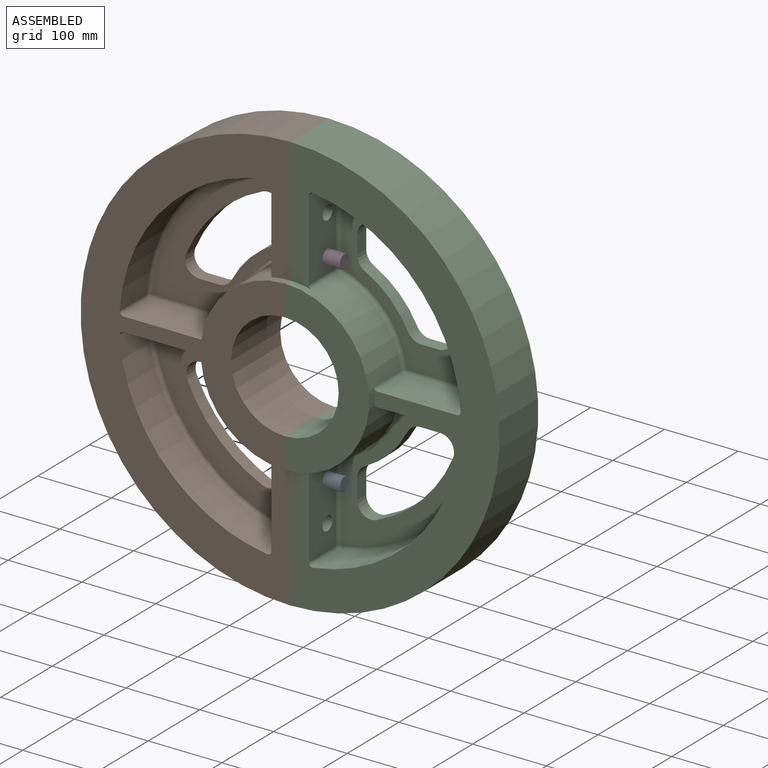
[diagram: assembled view]
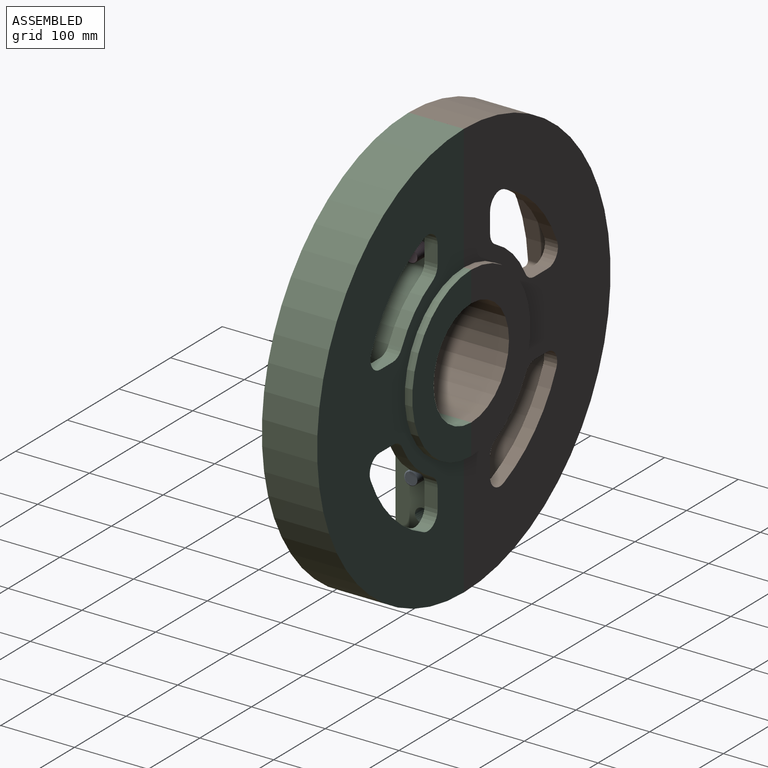
[diagram: assembled view, second angle]
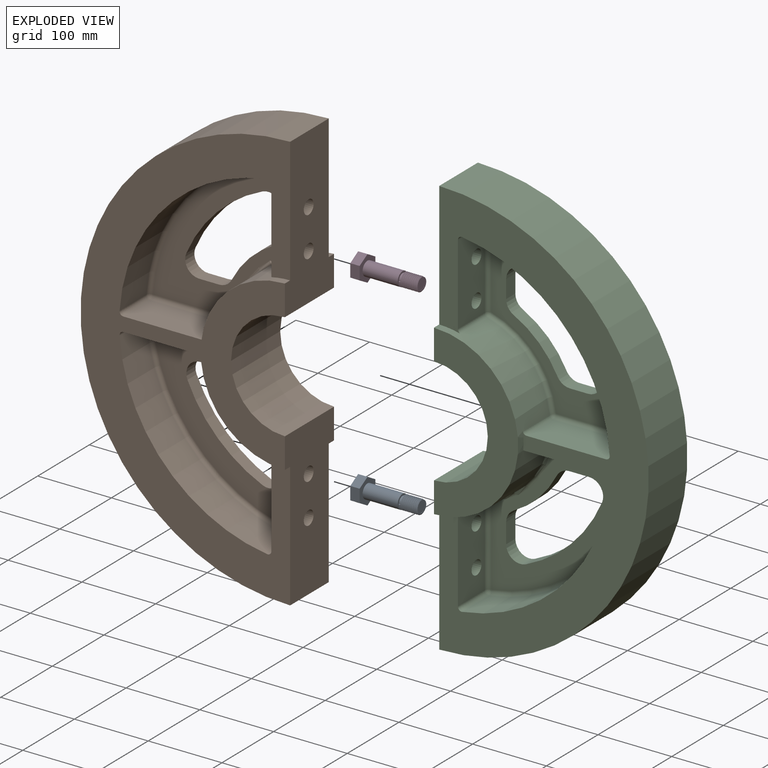
[diagram: exploded view]
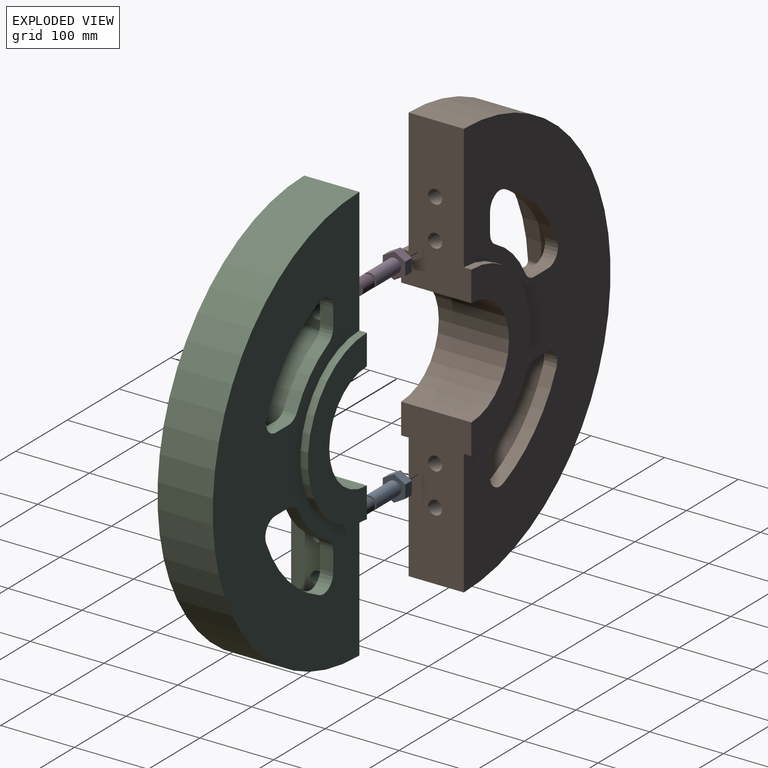
[diagram: exploded view, second angle]
ASSEMBLY  parts=4 mates=3
PART A: 19 faces, bbox 87.2x30.6x35.3 mm
  f0: bspline ~25.22x21.26mm, area 1042mm2, adj f1,f2,f14,f16
  f1: bspline ~24.92x21.63mm, area 245.4mm2, adj f0,f2,f14,f16
  f2: bspline ~26.49x21.26mm, area 1107.5mm2, adj f0,f1,f14,f15,f16
  f3: plane 17.6x12.7mm, normal (0,1,0), area 223.5mm2, adj f4,f8,f9,f10
  f4: plane 15.24x12.7mm, normal (0,0.5,0.87), area 223.5mm2, adj f3,f5,f9,f10
  f5: plane 15.24x12.7mm, normal (0,-0.5,0.87), area 223.5mm2, adj f4,f6,f9,f10
  f6: plane 17.6x12.7mm, normal (0,-1,0), area 223.5mm2, adj f5,f7,f9,f10
  f7: plane 15.24x12.7mm, normal (0,-0.5,-0.87), area 223.5mm2, adj f6,f8,f9,f10
  f8: plane 15.24x12.7mm, normal (0,0.5,-0.87), area 223.5mm2, adj f3,f7,f9,f10
  f9: plane 35.2x30.48mm, normal (1,0,0), area 519.5mm2, adj f3,f4,f5,f6,f7,f8,f11
  f10: plane 35.2x30.48mm, normal (-1,0,0), area 804.6mm2, adj f3,f4,f5,f6,f7,f8
  f11: cylinder r=9.53mm len=47.63mm, axis (-1,0,0), area 2850.2mm2, adj f9,f12
  f12: plane 19.05x19.05mm, normal (1,0,0), area 127.3mm2, adj f11,f13
  f13: cylinder r=7.09mm len=14.17mm, axis (-1,0,0), area 56.5mm2, adj f12,f14,f15
  f14: plane 2.69x2.24mm, normal (0,0,1), area 3.4mm2, adj f0,f1,f2,f13,f15
  f15: bspline ~16.92x14.65mm, area 12.5mm2, adj f2,f13,f14
  f16: plane 17.02x16.79mm, normal (1,0,0), area 65.8mm2, adj f0,f1,f2,f18
  f17: plane 14.17x14.17mm, normal (1,0,0), area 157.8mm2, adj f18
  f18: cylinder r=7.09mm len=14.17mm, axis (1,0,0), area 5.7mm2, adj f16,f17
PART B: 58 faces, bbox 284.2x95.3x568.3 mm
  f0: plane 211.14x95.25mm, normal (-1,0,0), area 16089.2mm2, adj f3,f4,f5,f40,f41,f42,f43,f44
  f1: plane 211.14x95.25mm, normal (-1,0,0), area 16089.2mm2, adj f3,f4,f5,f38,f39,f42,f43,f44
  f2: plane 210.03x195.74mm, normal (0,-1,0), area 14897.4mm2, adj f30,f31,f32,f33,f34,f35,f36,f37
  f3: plane 568.33x284.16mm, normal (0,1,0), area 87890.6mm2, adj f0,f1,f5,f22,f23,f24,f25,f26
  f4: plane 568.33x284.16mm, normal (0,-1,0), area 50722.7mm2, adj f0,f1,f5,f6,f7,f8,f9,f10
  f5: cylinder r=284.16mm len=568.33mm, axis (0,1,0), area 66891.7mm2, adj f0,f1,f3,f4
  f6: plane 112.32x52.07mm, normal (0,0,-1), area 5848.6mm2, adj f4,f14,f44,f47
  f7: plane 113.19x52.07mm, normal (1,0,0), area 5324mm2, adj f4,f13,f40,f41,f44,f51
  f8: cylinder r=231.78mm len=214.74mm, axis (0,-1,0), area 16551.5mm2, adj f4,f13,f14,f48
  f9: plane 107.74x52.07mm, normal (0,0,1), area 5610.1mm2, adj f4,f15,f17,f56
  f10: cylinder r=231.78mm len=214.74mm, axis (0,-1,0), area 16551.5mm2, adj f4,f15,f18,f21
  f11: plane 109.21x52.07mm, normal (1,0,0), area 5116.7mm2, adj f4,f19,f21,f38,f39,f52
  f12: plane 210.03x195.74mm, normal (0,-1,0), area 15294.8mm2, adj f17,f18,f19,f22,f23,f24,f25,f26
  f13: cylinder r=5.08mm len=52.07mm, axis (0,-1,0), area 451.2mm2, adj f4,f7,f8,f50
  f14: cylinder r=5.08mm len=52.07mm, axis (0,-1,0), area 432.6mm2, adj f4,f6,f8,f46
  f15: cylinder r=5.08mm len=52.07mm, axis (0,-1,0), area 432.6mm2, adj f4,f9,f10,f16
  f16: sphere r=5.08mm, area 42.2mm2, adj f15,f17,f18
  f17: cylinder r=5.08mm len=107.74mm, axis (1,0,0), area 859.7mm2, adj f9,f12,f16,f55
  f18: torus R=226.7mm, axis (0,-1,0), area 2516.3mm2, adj f10,f12,f16,f20
  f19: cylinder r=5.08mm len=109.21mm, axis (0,0,-1), area 871.5mm2, adj f11,f12,f20,f53
  f20: sphere r=5.08mm, area 44mm2, adj f18,f19,f21
  f21: cylinder r=5.08mm len=52.07mm, axis (0,-1,0), area 451.2mm2, adj f4,f10,f11,f20
  f22: plane 24.54x17.78mm, normal (1,0,0), area 436.4mm2, adj f3,f12,f23,f29
  f23: cylinder r=19.05mm len=17.78mm, axis (0,-1,0), area 372.6mm2, adj f3,f12,f22,f24
  f24: cylinder r=134.94mm len=59.05mm, axis (0,-1,0), area 1509.5mm2, adj f3,f12,f23,f25
  f25: cylinder r=19.05mm len=17.78mm, axis (0,-1,0), area 372.6mm2, adj f3,f12,f24,f26
  f26: plane 24.54x17.78mm, normal (0,0,1), area 436.4mm2, adj f3,f12,f25,f27
  f27: cylinder r=19.05mm len=26.6mm, axis (0,-1,0), area 670.1mm2, adj f3,f12,f26,f28
  f28: cylinder r=195.26mm len=101.87mm, axis (0,-1,0), area 2623.3mm2, adj f3,f12,f27,f29
  f29: cylinder r=19.05mm len=26.6mm, axis (0,-1,0), area 670.1mm2, adj f3,f12,f22,f28
  f30: cylinder r=134.02mm len=58.1mm, axis (0,-1,0), area 1484.8mm2, adj f2,f3,f31,f37
  f31: cylinder r=19.05mm len=17.78mm, axis (0,-1,0), area 371.5mm2, adj f2,f3,f30,f32
  f32: plane 27.15x17.78mm, normal (1,0,0), area 482.6mm2, adj f2,f3,f31,f33
  f33: cylinder r=19.05mm len=26.54mm, axis (0,-1,0), area 668.9mm2, adj f2,f3,f32,f34
  f34: cylinder r=196.71mm len=103.53mm, axis (0,-1,0), area 2667.4mm2, adj f2,f3,f33,f35
  f35: cylinder r=19.05mm len=26.54mm, axis (0,-1,0), area 668.9mm2, adj f2,f3,f34,f36
  f36: plane 27.15x17.78mm, normal (0,0,-1), area 482.6mm2, adj f2,f3,f35,f37
  f37: cylinder r=19.05mm len=17.78mm, axis (0,-1,0), area 371.5mm2, adj f2,f3,f30,f36
  f38: cylinder r=9.53mm len=25.4mm, axis (-1,0,0), area 1520.1mm2, adj f1,f11
  f39: cylinder r=9.53mm len=25.4mm, axis (-1,0,0), area 1520.1mm2, adj f1,f11
  f40: cylinder r=9.53mm len=25.4mm, axis (-1,0,0), area 1520.1mm2, adj f0,f7
  f41: cylinder r=9.53mm len=25.4mm, axis (-1,0,0), area 1520.1mm2, adj f0,f7
  f42: cylinder r=114.3mm len=228.6mm, axis (0,-1,0), area 3648.3mm2, adj f0,f1,f3,f43
  f43: plane 228.6x114.3mm, normal (0,1,0), area 12145.1mm2, adj f0,f1,f42,f57
  f44: cylinder r=114.3mm len=228.6mm, axis (0,-1,0), area 18249mm2, adj f0,f1,f4,f6,f7,f45,f49,f52
  f45: plane 228.6x114.3mm, normal (0,-1,0), area 12145.1mm2, adj f0,f1,f44,f57
  f46: sphere r=5.08mm, area 42.2mm2, adj f14,f47,f48
  f47: cylinder r=5.08mm len=112.32mm, axis (-1,0,0), area 882.9mm2, adj f2,f6,f46,f49
  f48: torus R=226.7mm, axis (0,-1,0), area 2516.3mm2, adj f2,f8,f46,f50
  f49: torus R=119.38mm, axis (0,-1,0), area 1145.5mm2, adj f2,f44,f47,f51
  f50: sphere r=5.08mm, area 44mm2, adj f13,f48,f51
  f51: cylinder r=5.08mm len=113.19mm, axis (0,0,-1), area 891.6mm2, adj f2,f7,f49,f50
  f52: cylinder r=5.08mm len=52.07mm, axis (0,-1,0), area 347.2mm2, adj f4,f11,f44,f53
  f53: sphere r=5.08mm, area 33.9mm2, adj f19,f52,f54
  f54: torus R=119.38mm, axis (0,-1,0), area 1102.9mm2, adj f12,f44,f53,f55
  f55: sphere r=5.08mm, area 37.4mm2, adj f17,f54,f56
  f56: cylinder r=5.08mm len=52.07mm, axis (0,-1,0), area 383.1mm2, adj f4,f9,f44,f55
  f57: cylinder r=73.03mm len=146.05mm, axis (0,-1,0), area 21851.8mm2, adj f0,f1,f43,f45
PART C: same geometry as B
PART D: same geometry as A
PLACE A rot(axis=(0,1,0),0deg) t=(1.73,96.93,-146.54)mm
PLACE B rot(axis=(0,1,0),180deg) t=(39.83,98.35,-10.01)mm
PLACE C t=(39.83,98.35,-10.01)mm fixed
PLACE D rot(axis=(0,1,0),0deg) t=(1.73,96.93,126.51)mm
MATE cylindrical B.f38 <-> A.f11  axis (-1,0,0) through (14.43,96.93,-146.54)mm
MATE parallel C.f1 <-> B.f0  axis (-1,0,0) through (39.83,60.88,274.15)mm
MATE cylindrical B.f40 <-> D.f11  axis (-1,0,0) through (14.43,96.93,126.51)mm
